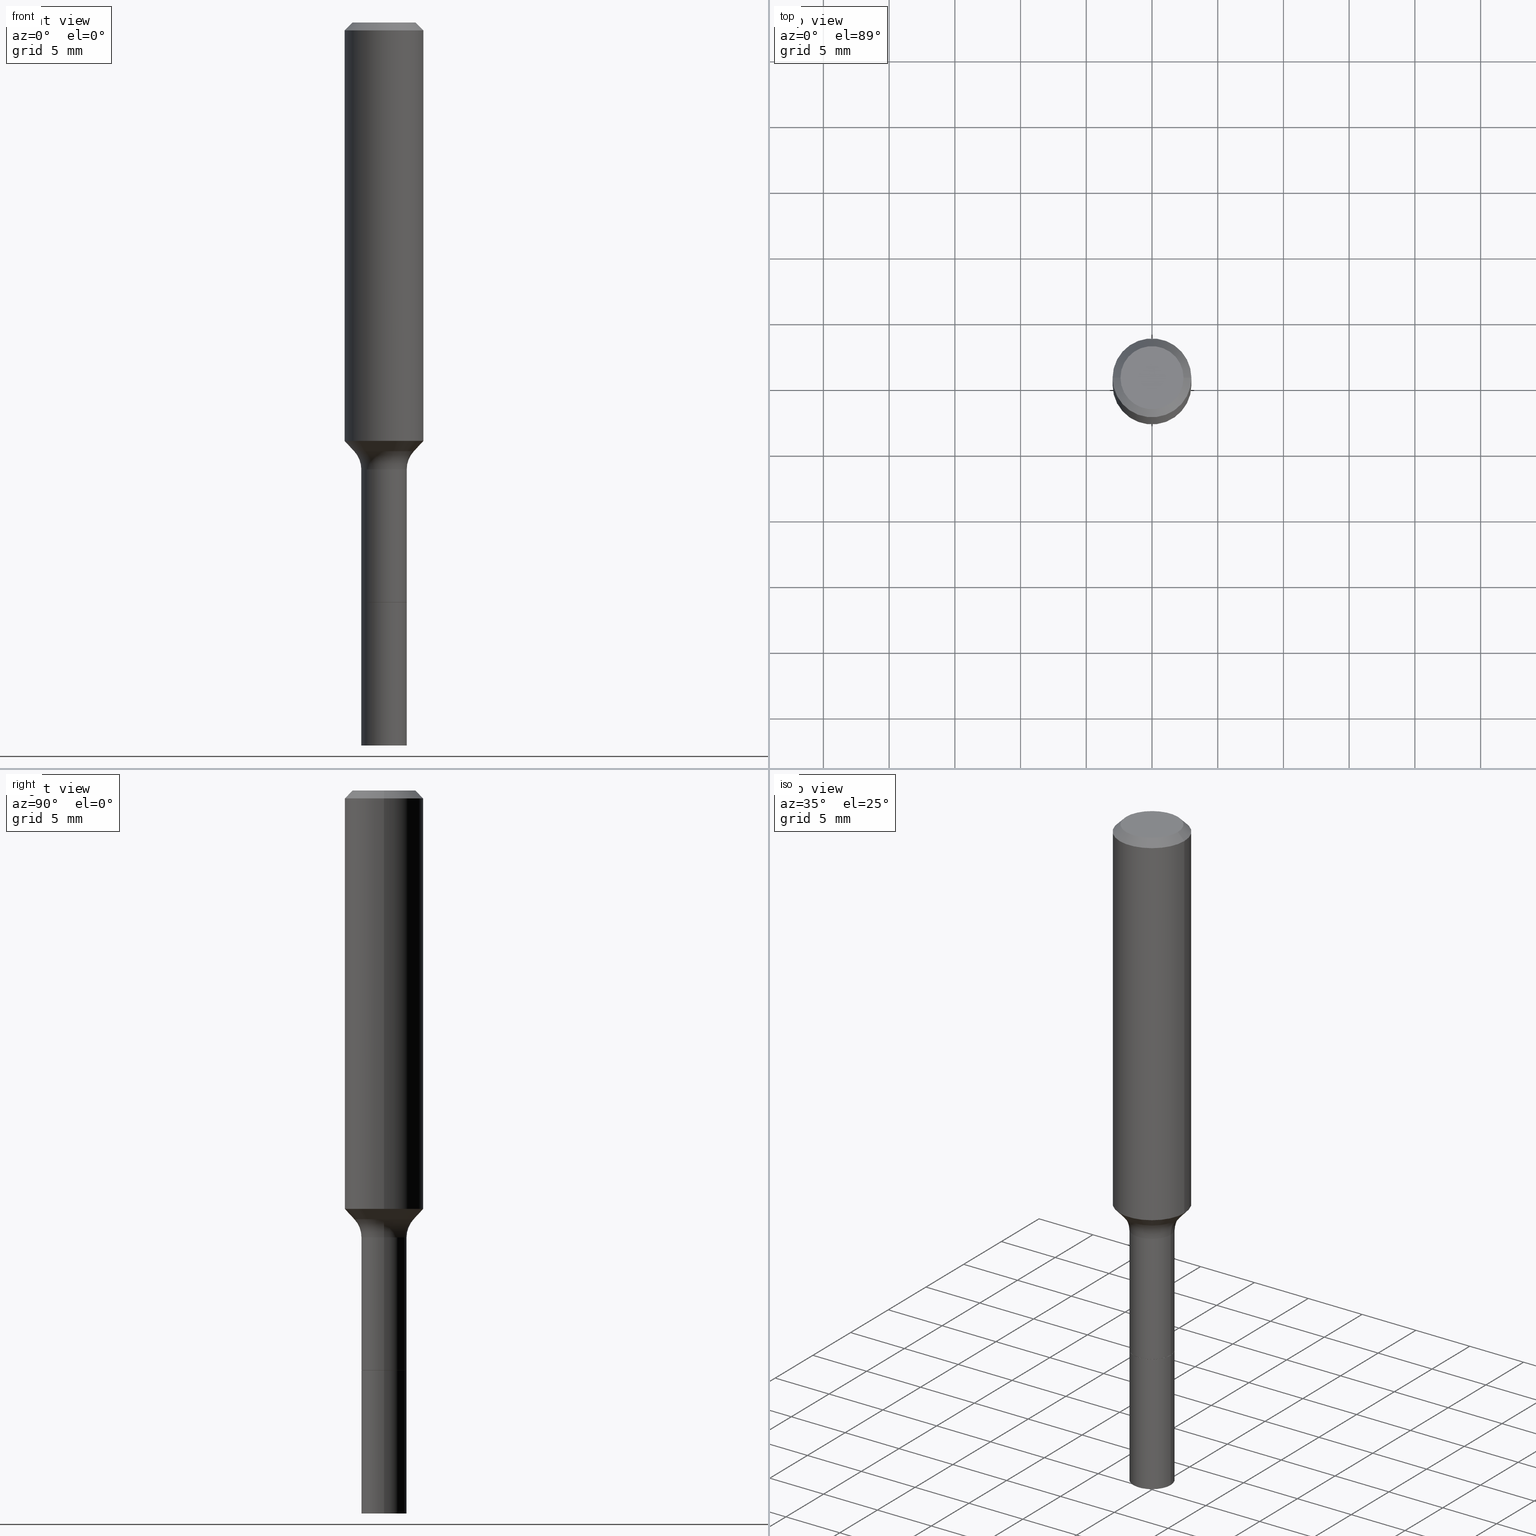
[diagram: canonical four-view strip — front | top / right | iso, engineering-drawing reading convention]
A machine part, canonical four-view strip (front | top / right | iso — engineering-drawing reading convention). The complete STEP part file that produces these views, byte-faithful:
ISO-10303-21;
HEADER;
FILE_DESCRIPTION (( 'STEP AP203' ),
    '1' );
FILE_NAME ('58801.STEP',
    '2025-04-01T15:24:49',
    ( '' ),
    ( '' ),
    'SwSTEP 2.0',
    'SolidWorks 2024',
    '' );
FILE_SCHEMA (( 'CONFIG_CONTROL_DESIGN' ));
ENDSEC;

DATA;
#1 = EDGE_LOOP ( 'NONE', ( #206, #467, #70, #57 ) ) ;
#2 = LINE ( 'NONE', #42, #425 ) ;
#3 = VERTEX_POINT ( 'NONE', #85 ) ;
#4 = CARTESIAN_POINT ( 'NONE',  ( -0.06750000000000000444, -5.580342622955058549E-15, -1.736399999999999721 ) ) ;
#5 = ADVANCED_FACE ( 'NONE', ( #245 ), #414, .T. ) ;
#6 = ORIENTED_EDGE ( 'NONE', *, *, #253, .F. ) ;
#7 = DIRECTION ( 'NONE',  ( 1.000000000000000000, -6.982962677686264344E-15, 0.000000000000000000 ) ) ;
#8 = VECTOR ( 'NONE', #184, 39.37007874015748143 ) ;
#9 = AXIS2_PLACEMENT_3D ( 'NONE', #417, #518, #215 ) ;
#10 = LINE ( 'NONE', #294, #454 ) ;
#11 =( LENGTH_UNIT ( ) NAMED_UNIT ( * ) SI_UNIT ( $, .METRE. ) );
#12 = EDGE_CURVE ( 'NONE', #436, #21, #127, .T. ) ;
#13 = CARTESIAN_POINT ( 'NONE',  ( 4.246312035059870225E-29, -6.062608196767237407E-15, -1.736399999999999721 ) ) ;
#14 = FACE_OUTER_BOUND ( 'NONE', #320, .T. ) ;
#15 = AXIS2_PLACEMENT_3D ( 'NONE', #194, #399, #513 ) ;
#16 = PERSON_AND_ORGANIZATION ( #258, #69 ) ;
#17 = EDGE_CURVE ( 'NONE', #87, #514, #10, .T. ) ;
#18 = CARTESIAN_POINT ( 'NONE',  ( 0.1180999999999999966, -9.071566814582237199E-16, -0.02362000000000014435 ) ) ;
#19 = AXIS2_PLACEMENT_3D ( 'NONE', #188, #342, #458 ) ;
#20 = AXIS2_PLACEMENT_3D ( 'NONE', #476, #372, #517 ) ;
#21 = VERTEX_POINT ( 'NONE', #48 ) ;
#22 = FACE_OUTER_BOUND ( 'NONE', #289, .T. ) ;
#23 = PERSON_AND_ORGANIZATION_ROLE ( 'design_supplier' ) ;
#24 = ADVANCED_FACE ( 'NONE', ( #377 ), #109, .T. ) ;
#25 = ORIENTED_EDGE ( 'NONE', *, *, #12, .T. ) ;
#26 = CARTESIAN_POINT ( 'NONE',  ( 0.06750000000000000444, -6.533958177511060726E-15, -1.736399999999999721 ) ) ;
#27 = CALENDAR_DATE ( 2025, 1, 4 ) ;
#28 = DIRECTION ( 'NONE',  ( 1.000000000000000000, -6.982962677686265922E-15, 0.000000000000000000 ) ) ;
#29 = AXIS2_PLACEMENT_3D ( 'NONE', #308, #463, #28 ) ;
#30 = CONICAL_SURFACE ( 'NONE', #307, 0.1180999999999999966, 0.7853981633974461696 ) ;
#31 = DIRECTION ( 'NONE',  ( 1.000000000000000000, -6.982962677686266711E-15, 4.876176775795936353E-29 ) ) ;
#32 = ORIENTED_EDGE ( 'NONE', *, *, #78, .F. ) ;
#33 = DIRECTION ( 'NONE',  ( 1.000000000000000000, -6.982962677686267499E-15, 0.000000000000000000 ) ) ;
#34 = CARTESIAN_POINT ( 'NONE',  ( 3.273015450198186344E-29, -4.672998623907665346E-15, -1.338399999999999812 ) ) ;
#35 = EDGE_LOOP ( 'NONE', ( #433, #112, #25, #115 ) ) ;
#36 = DIRECTION ( 'NONE',  ( 1.000000000000000000, -6.982962677686260400E-15, 0.000000000000000000 ) ) ;
#37 = DIRECTION ( 'NONE',  ( 2.438088387897960049E-29, -3.491481338843145188E-15, -1.000000000000000000 ) ) ;
#38 = CONICAL_SURFACE ( 'NONE', #79, 0.1180999999999999966, 0.7853981633974461696 ) ;
#39 = VERTEX_POINT ( 'NONE', #26 ) ;
#40 = AXIS2_PLACEMENT_3D ( 'NONE', #197, #47, #328 ) ;
#41 = CIRCLE ( 'NONE', #257, 0.06800000000000000488 ) ;
#42 = CARTESIAN_POINT ( 'NONE',  ( 0.06750000000000000444, -6.533958177511060726E-15, -1.736399999999999721 ) ) ;
#43 = ORIENTED_EDGE ( 'NONE', *, *, #226, .T. ) ;
#44 = ADVANCED_FACE ( 'NONE', ( #312 ), #385, .T. ) ;
#45 = CARTESIAN_POINT ( 'NONE',  ( 3.273015450198186344E-29, -4.672998623907665346E-15, -1.338399999999999812 ) ) ;
#46 = ORIENTED_EDGE ( 'NONE', *, *, #502, .F. ) ;
#47 = DIRECTION ( 'NONE',  ( 2.438088387897960049E-29, -3.491481338843145188E-15, -1.000000000000000000 ) ) ;
#48 = CARTESIAN_POINT ( 'NONE',  ( -0.1180999999999999966, -1.389778401389283023E-15, -0.02362000000000014435 ) ) ;
#49 = AXIS2_PLACEMENT_3D ( 'NONE', #191, #353, #506 ) ;
#50 = LOCAL_TIME ( 11, 24, 49.00000000000000000, #219 ) ;
#51 = EDGE_CURVE ( 'NONE', #397, #145, #349, .T. ) ;
#52 = LENGTH_MEASURE_WITH_UNIT ( LENGTH_MEASURE( 0.02539999999999999897 ), #11 );
#53 = AXIS2_PLACEMENT_3D ( 'NONE', #481, #369, #485 ) ;
#54 = EDGE_CURVE ( 'NONE', #3, #351, #176, .T. ) ;
#55 = APPLICATION_PROTOCOL_DEFINITION ( 'international standard', 'config_control_design', 1994, #358 ) ;
#56 = PRODUCT_DEFINITION_SHAPE ( 'NONE', 'NONE',  #281 ) ;
#57 = ORIENTED_EDGE ( 'NONE', *, *, #54, .F. ) ;
#58 = DIRECTION ( 'NONE',  ( 2.445468806185136597E-29, -3.491481338843145583E-15, -1.000000000000000000 ) ) ;
#59 = EDGE_CURVE ( 'NONE', #345, #404, #302, .T. ) ;
#60 = APPROVAL_ROLE ( '' ) ;
#61 = CARTESIAN_POINT ( 'NONE',  ( -0.06800000000000001876, -4.883761479685873253E-15, -1.735899999999999999 ) ) ;
#62 = APPROVAL_ROLE ( '' ) ;
#63 = EDGE_LOOP ( 'NONE', ( #391, #142, #162, #311 ) ) ;
#64 = DIRECTION ( 'NONE',  ( -2.445468806185136597E-29, 3.491481338843145583E-15, 1.000000000000000000 ) ) ;
#65 = DATE_AND_TIME ( #510, #416 ) ;
#66 = ORIENTED_EDGE ( 'NONE', *, *, #107, .F. ) ;
#67 = DIRECTION ( 'NONE',  ( -2.445468806185136597E-29, 3.491481338843145583E-15, 1.000000000000000000 ) ) ;
#68 = AXIS2_PLACEMENT_3D ( 'NONE', #487, #333, #248 ) ;
#69 = ORGANIZATION ( 'UNSPECIFIED', 'UNSPECIFIED', '' ) ;
#70 = ORIENTED_EDGE ( 'NONE', *, *, #208, .F. ) ;
#71 = CARTESIAN_POINT ( 'NONE',  ( -0.08949170387046634367, -3.846627059165739052E-15, -1.283840131195000067 ) ) ;
#72 = CC_DESIGN_PERSON_AND_ORGANIZATION_ASSIGNMENT ( #261, #23, ( #177 ) ) ;
#73 = ORIENTED_EDGE ( 'NONE', *, *, #253, .T. ) ;
#74 = CARTESIAN_POINT ( 'NONE',  ( 0.000000000000000000, 0.000000000000000000, 0.000000000000000000 ) ) ;
#75 = CARTESIAN_POINT ( 'NONE',  ( 4.246312035059870225E-29, -6.062608196767237407E-15, -1.736399999999999721 ) ) ;
#76 = VERTEX_POINT ( 'NONE', #456 ) ;
#77 = CARTESIAN_POINT ( 'NONE',  ( 5.295418152913294345E-29, -7.560453691130947423E-15, -2.165399999999999991 ) ) ;
#78 = EDGE_CURVE ( 'NONE', #179, #21, #503, .T. ) ;
#79 = AXIS2_PLACEMENT_3D ( 'NONE', #466, #58, #387 ) ;
#80 = ORIENTED_EDGE ( 'NONE', *, *, #438, .F. ) ;
#81 = CIRCLE ( 'NONE', #173, 0.08949170387046632980 ) ;
#82 = CC_DESIGN_DATE_AND_TIME_ASSIGNMENT ( #65, #277, ( #281 ) ) ;
#83 = LOCAL_TIME ( 11, 24, 49.00000000000000000, #185 ) ;
#84 = LINE ( 'NONE', #244, #240 ) ;
#85 = CARTESIAN_POINT ( 'NONE',  ( 0.06800000000000014366, -8.035295153213613748E-15, -2.165399999999999991 ) ) ;
#86 = CARTESIAN_POINT ( 'NONE',  ( -0.06799999999999994937, -4.883761479685873253E-15, -1.338399999999999812 ) ) ;
#87 = VERTEX_POINT ( 'NONE', #149 ) ;
#88 = DIRECTION ( 'NONE',  ( -2.445468806185136597E-29, 3.491481338843145583E-15, 1.000000000000000000 ) ) ;
#89 = DIRECTION ( 'NONE',  ( -1.000000000000000000, 6.982962677686265922E-15, -4.876176775795935793E-29 ) ) ;
#90 =( GEOMETRIC_REPRESENTATION_CONTEXT ( 3 ) GLOBAL_UNCERTAINTY_ASSIGNED_CONTEXT ( ( #477 ) ) GLOBAL_UNIT_ASSIGNED_CONTEXT ( ( #453, #178, #322 ) ) REPRESENTATION_CONTEXT ( 'NONE', 'WORKASPACE' ) );
#91 = CC_DESIGN_APPROVAL ( #180, ( #309 ) ) ;
#92 = DIRECTION ( 'NONE',  ( 1.000000000000000000, -6.982962677686269077E-15, 4.883557194083113462E-29 ) ) ;
#93 = EDGE_CURVE ( 'NONE', #164, #348, #273, .T. ) ;
#94 = AXIS2_PLACEMENT_3D ( 'NONE', #402, #88, #92 ) ;
#95 = EDGE_LOOP ( 'NONE', ( #408, #220, #238, #443 ) ) ;
#96 = ADVANCED_FACE ( 'NONE', ( #260 ), #38, .T. ) ;
#97 = DIRECTION ( 'NONE',  ( 1.000000000000000000, -6.982962677686268288E-15, 0.000000000000000000 ) ) ;
#98 = APPROVAL_STATUS ( 'not_yet_approved' ) ;
#99 = VERTEX_POINT ( 'NONE', #18 ) ;
#100 = CARTESIAN_POINT ( 'NONE',  ( 0.1180999999999999966, -8.926936027602933910E-16, -0.02362000000000014435 ) ) ;
#101 = AXIS2_PLACEMENT_3D ( 'NONE', #236, #123, #36 ) ;
#102 = PERSON_AND_ORGANIZATION ( #258, #69 ) ;
#103 = CARTESIAN_POINT ( 'NONE',  ( -0.1181000000000001354, -3.536238984487769574E-15, -1.253161489578567878 ) ) ;
#104 = CALENDAR_DATE ( 2025, 1, 4 ) ;
#105 = CARTESIAN_POINT ( 'NONE',  ( 4.246312035059870225E-29, -6.062608196767237407E-15, -1.736399999999999721 ) ) ;
#106 = APPROVAL_DATE_TIME ( #141, #326 ) ;
#107 = EDGE_CURVE ( 'NONE', #404, #179, #166, .T. ) ;
#108 = CARTESIAN_POINT ( 'NONE',  ( 0.06800000000000007427, -6.537449658849904522E-15, -1.736399999999999721 ) ) ;
#109 = CONICAL_SURFACE ( 'NONE', #306, 0.06750000000000000444, 0.7853981633975507526 ) ;
#110 = SECURITY_CLASSIFICATION_LEVEL ( 'unclassified' ) ;
#111 = CC_DESIGN_APPROVAL ( #326, ( #281 ) ) ;
#112 = ORIENTED_EDGE ( 'NONE', *, *, #195, .F. ) ;
#113 = DIRECTION ( 'NONE',  ( 1.000000000000000000, -6.982962677686267499E-15, 4.876176775795935793E-29 ) ) ;
#114 = DIRECTION ( 'NONE',  ( 1.000000000000000000, -6.982962677686267499E-15, 0.000000000000000000 ) ) ;
#115 = ORIENTED_EDGE ( 'NONE', *, *, #502, .T. ) ;
#116 = DIRECTION ( 'NONE',  ( -2.445468806185136597E-29, 3.491481338843145583E-15, 1.000000000000000000 ) ) ;
#117 = ADVANCED_FACE ( 'NONE', ( #22 ), #498, .T. ) ;
#118 = ORIENTED_EDGE ( 'NONE', *, *, #464, .F. ) ;
#119 = FACE_OUTER_BOUND ( 'NONE', #35, .T. ) ;
#120 = VECTOR ( 'NONE', #395, 39.37007874015748143 ) ;
#121 = ORIENTED_EDGE ( 'NONE', *, *, #187, .F. ) ;
#122 = CIRCLE ( 'NONE', #53, 0.06800000000000000488 ) ;
#123 = DIRECTION ( 'NONE',  ( -2.445468806185136597E-29, 3.491481338843145583E-15, 1.000000000000000000 ) ) ;
#124 = EDGE_LOOP ( 'NONE', ( #167, #511 ) ) ;
#125 = CARTESIAN_POINT ( 'NONE',  ( 4.246312035059870225E-29, -6.062608196767237407E-15, -1.736399999999999721 ) ) ;
#126 = DIRECTION ( 'NONE',  ( -1.000000000000000000, 6.982962677686265922E-15, -4.876176775795935793E-29 ) ) ;
#127 = LINE ( 'NONE', #210, #419 ) ;
#128 = CARTESIAN_POINT ( 'NONE',  ( 4.246312035059870225E-29, -6.062608196767237407E-15, -1.736399999999999721 ) ) ;
#129 = CC_DESIGN_PERSON_AND_ORGANIZATION_ASSIGNMENT ( #182, #469, ( #177 ) ) ;
#130 = DIRECTION ( 'NONE',  ( 1.000000000000000000, -6.982962677686268288E-15, 0.000000000000000000 ) ) ;
#131 = LOCAL_TIME ( 11, 24, 49.00000000000000000, #154 ) ;
#132 = DIRECTION ( 'NONE',  ( -2.445468806185136597E-29, 3.491481338843145583E-15, 1.000000000000000000 ) ) ;
#133 = EDGE_CURVE ( 'NONE', #164, #87, #274, .T. ) ;
#134 = AXIS2_PLACEMENT_3D ( 'NONE', #429, #388, #31 ) ;
#135 = CIRCLE ( 'NONE', #381, 0.1180999999999999966 ) ;
#136 = ADVANCED_FACE ( 'NONE', ( #143 ), #200, .T. ) ;
#137 = PRODUCT ( '58801', '58801', '', ( #396 ) ) ;
#138 = ORIENTED_EDGE ( 'NONE', *, *, #325, .T. ) ;
#139 = CARTESIAN_POINT ( 'NONE',  ( 4.245089300656778545E-29, -6.060862456097816693E-15, -1.735899999999999999 ) ) ;
#140 = APPROVAL ( #98, 'UNSPECIFIED' ) ;
#141 = DATE_AND_TIME ( #310, #50 ) ;
#142 = ORIENTED_EDGE ( 'NONE', *, *, #471, .T. ) ;
#143 = FACE_OUTER_BOUND ( 'NONE', #373, .T. ) ;
#144 = PERSON_AND_ORGANIZATION_ROLE ( 'classification_officer' ) ;
#145 = VERTEX_POINT ( 'NONE', #508 ) ;
#146 = DIRECTION ( 'NONE',  ( -2.445468806185136877E-29, 3.491481338843145188E-15, 1.000000000000000000 ) ) ;
#147 = CIRCLE ( 'NONE', #495, 0.06750000000000000444 ) ;
#148 = TOROIDAL_SURFACE ( 'NONE', #94, 0.1479999999999999372, 0.07999999999999993228 ) ;
#149 = CARTESIAN_POINT ( 'NONE',  ( 0.06800000000000000488, -6.535703918180482229E-15, -1.735899999999999999 ) ) ;
#150 = EDGE_CURVE ( 'NONE', #76, #99, #304, .T. ) ;
#151 = PERSON_AND_ORGANIZATION ( #258, #69 ) ;
#152 = EDGE_LOOP ( 'NONE', ( #43, #186, #470, #423 ) ) ;
#153 = CARTESIAN_POINT ( 'NONE',  ( 4.246312035059870225E-29, -6.062608196767237407E-15, -1.736399999999999721 ) ) ;
#154 = COORDINATED_UNIVERSAL_TIME_OFFSET ( 5, 0, .BEHIND. ) ;
#155 = ORIENTED_EDGE ( 'NONE', *, *, #107, .T. ) ;
#156 = FACE_OUTER_BOUND ( 'NONE', #484, .T. ) ;
#157 = DIRECTION ( 'NONE',  ( 0.000000000000000000, 0.000000000000000000, 1.000000000000000000 ) ) ;
#158 = ORIENTED_EDGE ( 'NONE', *, *, #382, .T. ) ;
#159 = EDGE_CURVE ( 'NONE', #404, #99, #390, .T. ) ;
#160 = DIRECTION ( 'NONE',  ( -2.445468806185136597E-29, 3.491481338843145583E-15, 1.000000000000000000 ) ) ;
#161 = CARTESIAN_POINT ( 'NONE',  ( -0.09447999999999998066, 7.009847083995354710E-16, -3.085620075132147757E-17 ) ) ;
#162 = ORIENTED_EDGE ( 'NONE', *, *, #246, .T. ) ;
#163 = FACE_OUTER_BOUND ( 'NONE', #95, .T. ) ;
#164 = VERTEX_POINT ( 'NONE', #61 ) ;
#165 = DIRECTION ( 'NONE',  ( -2.445468806185136597E-29, 3.491481338843145583E-15, 1.000000000000000000 ) ) ;
#166 = CIRCLE ( 'NONE', #19, 0.1181000000000001493 ) ;
#167 = ORIENTED_EDGE ( 'NONE', *, *, #226, .F. ) ;
#168 = AXIS2_PLACEMENT_3D ( 'NONE', #412, #321, #207 ) ;
#169 = DIRECTION ( 'NONE',  ( 1.000000000000000000, -6.982962677686260400E-15, 0.000000000000000000 ) ) ;
#170 = DIRECTION ( 'NONE',  ( -2.445468806185136877E-29, 3.491481338843145188E-15, 1.000000000000000000 ) ) ;
#171 = DIRECTION ( 'NONE',  ( -2.445468806185136597E-29, 3.491481338843145583E-15, 1.000000000000000000 ) ) ;
#172 = EDGE_CURVE ( 'NONE', #348, #514, #263, .T. ) ;
#173 = AXIS2_PLACEMENT_3D ( 'NONE', #361, #451, #234 ) ;
#174 = DIRECTION ( 'NONE',  ( 1.000000000000000000, -6.982962677686265922E-15, 0.000000000000000000 ) ) ;
#175 = CLOSED_SHELL ( 'NONE', ( #403, #339, #344, #384 ) ) ;
#176 = LINE ( 'NONE', #108, #250 ) ;
#177 = PRODUCT_DEFINITION_FORMATION_WITH_SPECIFIED_SOURCE ( 'ANY', '', #137, .NOT_KNOWN. ) ;
#178 =( NAMED_UNIT ( * ) PLANE_ANGLE_UNIT ( ) SI_UNIT ( $, .RADIAN. ) );
#179 = VERTEX_POINT ( 'NONE', #103 ) ;
#180 = APPROVAL ( #427, 'UNSPECIFIED' ) ;
#181 = CARTESIAN_POINT ( 'NONE',  ( -0.1181000000000000660, 8.391509709326787887E-16, -5.809262341591047287E-30 ) ) ;
#182 = PERSON_AND_ORGANIZATION ( #258, #69 ) ;
#183 = ORIENTED_EDGE ( 'NONE', *, *, #208, .T. ) ;
#184 = DIRECTION ( 'NONE',  ( 0.6819983600625003639, -2.208861293262494341E-15, 0.7313537016191687945 ) ) ;
#185 = COORDINATED_UNIVERSAL_TIME_OFFSET ( 5, 0, .BEHIND. ) ;
#186 = ORIENTED_EDGE ( 'NONE', *, *, #214, .T. ) ;
#187 = EDGE_CURVE ( 'NONE', #345, #514, #375, .T. ) ;
#188 = CARTESIAN_POINT ( 'NONE',  ( 3.064567331876887429E-29, -4.375389955420448954E-15, -1.253161489578567878 ) ) ;
#189 = ADVANCED_BREP_SHAPE_REPRESENTATION ( '58801', ( #224, #413, #386 ), #90 ) ;
#190 = CIRCLE ( 'NONE', #101, 0.06800000000000014366 ) ;
#191 = CARTESIAN_POINT ( 'NONE',  ( 0.1479999999999999372, -5.706477100205231747E-15, -1.338399999999999812 ) ) ;
#192 = ORIENTED_EDGE ( 'NONE', *, *, #51, .F. ) ;
#193 = DIRECTION ( 'NONE',  ( 1.000000000000000000, -6.982962677686269077E-15, 4.883557194083113462E-29 ) ) ;
#194 = CARTESIAN_POINT ( 'NONE',  ( 3.139590992966006013E-29, -4.482503860125278864E-15, -1.283840131195000067 ) ) ;
#195 = EDGE_CURVE ( 'NONE', #436, #76, #434, .T. ) ;
#196 = EDGE_LOOP ( 'NONE', ( #80, #138, #367, #121 ) ) ;
#197 = CARTESIAN_POINT ( 'NONE',  ( 5.295418152913294345E-29, -7.560453691130947423E-15, -2.165399999999999991 ) ) ;
#198 = PLANE ( 'NONE',  #455 ) ;
#199 = VECTOR ( 'NONE', #146, 39.37007874015748143 ) ;
#200 = CONICAL_SURFACE ( 'NONE', #492, 0.08949170387046632980, 0.7504915783575641930 ) ;
#201 = AXIS2_PLACEMENT_3D ( 'NONE', #74, #473, #113 ) ;
#202 = ORIENTED_EDGE ( 'NONE', *, *, #159, .F. ) ;
#203 = DIRECTION ( 'NONE',  ( 1.000000000000000000, -6.982962677686266711E-15, 0.000000000000000000 ) ) ;
#204 = ORIENTED_EDGE ( 'NONE', *, *, #332, .F. ) ;
#205 = DIRECTION ( 'NONE',  ( -2.445468806185136597E-29, 3.491481338843145583E-15, 1.000000000000000000 ) ) ;
#206 = ORIENTED_EDGE ( 'NONE', *, *, #332, .T. ) ;
#207 = DIRECTION ( 'NONE',  ( 1.000000000000000000, -6.982962677686267499E-15, 4.875432709231658792E-29 ) ) ;
#208 = EDGE_CURVE ( 'NONE', #351, #145, #459, .T. ) ;
#209 = DATE_AND_TIME ( #104, #83 ) ;
#210 = CARTESIAN_POINT ( 'NONE',  ( -0.1180999999999999966, 7.422191030112725094E-16, -0.02362000000000014435 ) ) ;
#211 = DIRECTION ( 'NONE',  ( 2.438088387897960049E-29, -3.491481338843145188E-15, -1.000000000000000000 ) ) ;
#212 = CARTESIAN_POINT ( 'NONE',  ( 0.000000000000000000, 0.000000000000000000, 0.000000000000000000 ) ) ;
#213 = CARTESIAN_POINT ( 'NONE',  ( 0.1181000000000001354, -5.200077847655198006E-15, -1.253161489578567878 ) ) ;
#214 = EDGE_CURVE ( 'NONE', #330, #164, #84, .T. ) ;
#215 = DIRECTION ( 'NONE',  ( 1.000000000000000000, -6.982962677686265922E-15, 4.876176775795935793E-29 ) ) ;
#216 = CIRCLE ( 'NONE', #337, 0.1181000000000001493 ) ;
#217 = DIMENSIONAL_EXPONENTS ( 1.000000000000000000, 0.000000000000000000, 0.000000000000000000, 0.000000000000000000, 0.000000000000000000, 0.000000000000000000, 0.000000000000000000 ) ;
#218 = DIRECTION ( 'NONE',  ( -2.445468806185136597E-29, 3.491481338843145583E-15, 1.000000000000000000 ) ) ;
#219 = COORDINATED_UNIVERSAL_TIME_OFFSET ( 5, 0, .BEHIND. ) ;
#220 = ORIENTED_EDGE ( 'NONE', *, *, #287, .F. ) ;
#221 = DIRECTION ( 'NONE',  ( -2.445468806185136877E-29, 3.491481338843145188E-15, 1.000000000000000000 ) ) ;
#222 = APPROVAL_PERSON_ORGANIZATION ( #313, #140, #60 ) ;
#223 = DIRECTION ( 'NONE',  ( -2.445468806185136877E-29, 3.491481338843145188E-15, 1.000000000000000000 ) ) ;
#224 = MANIFOLD_SOLID_BREP ( 'Body-Move/Copy2[1]', #175 ) ;
#225 = COORDINATED_UNIVERSAL_TIME_OFFSET ( 5, 0, .BEHIND. ) ;
#226 = EDGE_CURVE ( 'NONE', #39, #330, #147, .T. ) ;
#227 = CARTESIAN_POINT ( 'NONE',  ( -0.06800000000000007427, -5.579439136450368852E-15, -1.736399999999999721 ) ) ;
#228 = VERTEX_POINT ( 'NONE', #71 ) ;
#229 = DIRECTION ( 'NONE',  ( 1.000000000000000000, -6.982962677686267499E-15, 4.875432709231658792E-29 ) ) ;
#230 = TOROIDAL_SURFACE ( 'NONE', #504, 0.1479999999999999372, 0.07999999999999993228 ) ;
#231 = APPROVAL_STATUS ( 'not_yet_approved' ) ;
#232 = CYLINDRICAL_SURFACE ( 'NONE', #201, 0.06799999999999997713 ) ;
#233 = EDGE_CURVE ( 'NONE', #87, #164, #122, .T. ) ;
#234 = DIRECTION ( 'NONE',  ( 1.000000000000000000, -6.982962677686261977E-15, 0.000000000000000000 ) ) ;
#235 = ORIENTED_EDGE ( 'NONE', *, *, #59, .T. ) ;
#236 = CARTESIAN_POINT ( 'NONE',  ( 5.295418152913294345E-29, -7.560453691130947423E-15, -2.165399999999999991 ) ) ;
#237 = FACE_OUTER_BOUND ( 'NONE', #196, .T. ) ;
#238 = ORIENTED_EDGE ( 'NONE', *, *, #187, .T. ) ;
#239 = DIRECTION ( 'NONE',  ( -2.445468806185136597E-29, 3.491481338843145583E-15, 1.000000000000000000 ) ) ;
#240 = VECTOR ( 'NONE', #324, 39.37007874015748143 ) ;
#241 = CIRCLE ( 'NONE', #366, 0.06799999999999994937 ) ;
#242 = CC_DESIGN_SECURITY_CLASSIFICATION ( #309, ( #177 ) ) ;
#243 = ORIENTED_EDGE ( 'NONE', *, *, #301, .T. ) ;
#244 = CARTESIAN_POINT ( 'NONE',  ( -0.06750000000000000444, -5.582991850129169750E-15, -1.736399999999999721 ) ) ;
#245 = FACE_OUTER_BOUND ( 'NONE', #362, .T. ) ;
#246 = EDGE_CURVE ( 'NONE', #39, #87, #2, .T. ) ;
#247 = CARTESIAN_POINT ( 'NONE',  ( 0.06800000000000000488, -6.537449658849903733E-15, -1.736399999999999721 ) ) ;
#248 = DIRECTION ( 'NONE',  ( 1.000000000000000000, -6.982962677686267499E-15, 4.876176775795935793E-29 ) ) ;
#249 = CARTESIAN_POINT ( 'NONE',  ( 4.246312035059870225E-29, -6.062608196767237407E-15, -1.736399999999999721 ) ) ;
#250 = VECTOR ( 'NONE', #424, 39.37007874015748143 ) ;
#251 = AXIS2_PLACEMENT_3D ( 'NONE', #398, #165, #401 ) ;
#252 = CYLINDRICAL_SURFACE ( 'NONE', #516, 0.1181000000000000660 ) ;
#253 = EDGE_CURVE ( 'NONE', #99, #21, #496, .T. ) ;
#254 = PLANE ( 'NONE',  #472 ) ;
#255 = APPLICATION_CONTEXT ( 'configuration controlled 3d designs of mechanical parts and assemblies' ) ;
#256 = VECTOR ( 'NONE', #264, 39.37007874015748143 ) ;
#257 = AXIS2_PLACEMENT_3D ( 'NONE', #13, #171, #494 ) ;
#258 = PERSON ( 'UNSPECIFIED', 'UNSPECIFIED', 'UNSPECIFIED', ('UNSPECIFIED'), ('UNSPECIFIED'), ('UNSPECIFIED') ) ;
#259 = PERSON_AND_ORGANIZATION ( #258, #69 ) ;
#260 = FACE_OUTER_BOUND ( 'NONE', #505, .T. ) ;
#261 = PERSON_AND_ORGANIZATION ( #258, #69 ) ;
#262 = ORIENTED_EDGE ( 'NONE', *, *, #150, .T. ) ;
#263 = CIRCLE ( 'NONE', #29, 0.06799999999999994937 ) ;
#264 = DIRECTION ( 'NONE',  ( 0.7071067811865460184, -7.319954787623251312E-15, -0.7071067811865490160 ) ) ;
#265 = AXIS2_PLACEMENT_3D ( 'NONE', #284, #239, #203 ) ;
#266 = LOCAL_TIME ( 11, 24, 49.00000000000000000, #343 ) ;
#267 = ADVANCED_FACE ( 'NONE', ( #442 ), #232, .T. ) ;
#268 = EDGE_LOOP ( 'NONE', ( #480, #291, #66, #475 ) ) ;
#269 = CARTESIAN_POINT ( 'NONE',  ( 3.139590992966006013E-29, -4.482503860125278864E-15, -1.283840131195000067 ) ) ;
#270 = CALENDAR_DATE ( 2025, 1, 4 ) ;
#271 = DIRECTION ( 'NONE',  ( 1.000000000000000000, -6.982962677686261977E-15, 0.000000000000000000 ) ) ;
#272 = EDGE_LOOP ( 'NONE', ( #192, #243, #457, #283 ) ) ;
#273 = LINE ( 'NONE', #315, #364 ) ;
#274 = CIRCLE ( 'NONE', #491, 0.06800000000000000488 ) ;
#275 = APPROVAL_PERSON_ORGANIZATION ( #259, #326, #355 ) ;
#276 = APPROVAL_PERSON_ORGANIZATION ( #102, #180, #62 ) ;
#277 = DATE_TIME_ROLE ( 'creation_date' ) ;
#278 = ORIENTED_EDGE ( 'NONE', *, *, #301, .F. ) ;
#279 = CARTESIAN_POINT ( 'NONE',  ( 5.776197320209328408E-31, -8.246878922347560526E-17, -0.02362000000000014435 ) ) ;
#280 = CARTESIAN_POINT ( 'NONE',  ( 0.000000000000000000, 0.000000000000000000, 0.000000000000000000 ) ) ;
#281 = PRODUCT_DEFINITION ( 'UNKNOWN', '', #177, #350 ) ;
#282 = SHAPE_DEFINITION_REPRESENTATION ( #56, #189 ) ;
#283 = ORIENTED_EDGE ( 'NONE', *, *, #452, .F. ) ;
#284 = CARTESIAN_POINT ( 'NONE',  ( 5.776197320209328408E-31, -8.246878922347560526E-17, -0.02362000000000014435 ) ) ;
#285 = EDGE_LOOP ( 'NONE', ( #183, #446 ) ) ;
#286 = DIRECTION ( 'NONE',  ( -2.445468806185136597E-29, 3.491481338843145583E-15, 1.000000000000000000 ) ) ;
#287 = EDGE_CURVE ( 'NONE', #345, #228, #376, .T. ) ;
#288 = APPLICATION_PROTOCOL_DEFINITION ( 'international standard', 'config_control_design', 1994, #255 ) ;
#289 = EDGE_LOOP ( 'NONE', ( #155, #441, #6, #202 ) ) ;
#290 = CARTESIAN_POINT ( 'NONE',  ( 4.246312035059870225E-29, -6.062608196767237407E-15, -1.736399999999999721 ) ) ;
#291 = ORIENTED_EDGE ( 'NONE', *, *, #418, .T. ) ;
#292 = DIRECTION ( 'NONE',  ( 0.7071067811866199593, -2.468850131083015945E-15, 0.7071067811864750752 ) ) ;
#293 = FACE_OUTER_BOUND ( 'NONE', #1, .T. ) ;
#294 = CARTESIAN_POINT ( 'NONE',  ( 0.06799999999999997713, -4.748414620826660298E-16, 3.315800207541235302E-30 ) ) ;
#295 = ADVANCED_FACE ( 'NONE', ( #119 ), #30, .T. ) ;
#296 = CC_DESIGN_PERSON_AND_ORGANIZATION_ASSIGNMENT ( #151, #432, ( #281 ) ) ;
#297 = CIRCLE ( 'NONE', #461, 0.06750000000000000444 ) ;
#298 = DIRECTION ( 'NONE',  ( -0.6819983600625003639, 7.399397606724294465E-15, 0.7313537016191687945 ) ) ;
#299 = FACE_OUTER_BOUND ( 'NONE', #285, .T. ) ;
#300 = CARTESIAN_POINT ( 'NONE',  ( -0.08949170387046632980, -3.846627059165739841E-15, -1.283840131195000067 ) ) ;
#301 = EDGE_CURVE ( 'NONE', #397, #3, #394, .T. ) ;
#302 = LINE ( 'NONE', #383, #8 ) ;
#303 = ADVANCED_FACE ( 'NONE', ( #163 ), #230, .F. ) ;
#304 = LINE ( 'NONE', #100, #256 ) ;
#305 = DATE_AND_TIME ( #270, #266 ) ;
#306 = AXIS2_PLACEMENT_3D ( 'NONE', #153, #218, #97 ) ;
#307 = AXIS2_PLACEMENT_3D ( 'NONE', #279, #409, #437 ) ;
#308 = CARTESIAN_POINT ( 'NONE',  ( 3.273015450198186344E-29, -4.672998623907665346E-15, -1.338399999999999812 ) ) ;
#309 = SECURITY_CLASSIFICATION ( '', '', #110 ) ;
#310 = CALENDAR_DATE ( 2025, 1, 4 ) ;
#311 = ORIENTED_EDGE ( 'NONE', *, *, #133, .F. ) ;
#312 = FACE_OUTER_BOUND ( 'NONE', #152, .T. ) ;
#313 = PERSON_AND_ORGANIZATION ( #258, #69 ) ;
#314 = ORIENTED_EDGE ( 'NONE', *, *, #368, .F. ) ;
#315 = CARTESIAN_POINT ( 'NONE',  ( -0.06799999999999997713, 4.831690603168679639E-16, -3.344875861373334654E-30 ) ) ;
#316 = ORIENTED_EDGE ( 'NONE', *, *, #233, .T. ) ;
#317 = FACE_OUTER_BOUND ( 'NONE', #272, .T. ) ;
#318 = CARTESIAN_POINT ( 'NONE',  ( 5.776197320209328408E-31, -8.246878922347560526E-17, -0.02362000000000014435 ) ) ;
#319 = AXIS2_PLACEMENT_3D ( 'NONE', #290, #160, #33 ) ;
#320 = EDGE_LOOP ( 'NONE', ( #400, #341 ) ) ;
#321 = DIRECTION ( 'NONE',  ( -2.445468806185136597E-29, 3.491481338843145583E-15, 1.000000000000000000 ) ) ;
#322 =( NAMED_UNIT ( * ) SI_UNIT ( $, .STERADIAN. ) SOLID_ANGLE_UNIT ( ) );
#323 = ORIENTED_EDGE ( 'NONE', *, *, #418, .F. ) ;
#324 = DIRECTION ( 'NONE',  ( -0.7071067811866199593, 7.493145998870616062E-15, 0.7071067811864750752 ) ) ;
#325 = EDGE_CURVE ( 'NONE', #228, #348, #420, .T. ) ;
#326 = APPROVAL ( #231, 'UNSPECIFIED' ) ;
#327 = EDGE_LOOP ( 'NONE', ( #501, #371, #462, #444 ) ) ;
#328 = DIRECTION ( 'NONE',  ( -1.000000000000000000, 6.982962677686265922E-15, -4.876176775795935793E-29 ) ) ;
#329 = AXIS2_PLACEMENT_3D ( 'NONE', #431, #67, #229 ) ;
#330 = VERTEX_POINT ( 'NONE', #4 ) ;
#331 = DIRECTION ( 'NONE',  ( 1.000000000000000000, -6.982962677686268288E-15, 0.000000000000000000 ) ) ;
#332 = EDGE_CURVE ( 'NONE', #3, #397, #190, .T. ) ;
#333 = DIRECTION ( 'NONE',  ( -2.445468806185136597E-29, 3.491481338843145583E-15, 1.000000000000000000 ) ) ;
#334 = LINE ( 'NONE', #300, #407 ) ;
#335 = DIRECTION ( 'NONE',  ( -2.445468806185136597E-29, 3.491481338843145583E-15, 1.000000000000000000 ) ) ;
#336 = AXIS2_PLACEMENT_3D ( 'NONE', #357, #479, #169 ) ;
#337 = AXIS2_PLACEMENT_3D ( 'NONE', #374, #512, #7 ) ;
#338 = CYLINDRICAL_SURFACE ( 'NONE', #493, 0.06800000000000007427 ) ;
#339 = ADVANCED_FACE ( 'NONE', ( #156 ), #360, .T. ) ;
#340 = CONICAL_SURFACE ( 'NONE', #15, 0.08949170387046632980, 0.7504915783575641930 ) ;
#341 = ORIENTED_EDGE ( 'NONE', *, *, #368, .T. ) ;
#342 = DIRECTION ( 'NONE',  ( -2.445468806185136597E-29, 3.491481338843145583E-15, 1.000000000000000000 ) ) ;
#343 = COORDINATED_UNIVERSAL_TIME_OFFSET ( 5, 0, .BEHIND. ) ;
#344 = ADVANCED_FACE ( 'NONE', ( #317 ), #363, .T. ) ;
#345 = VERTEX_POINT ( 'NONE', #445 ) ;
#346 = DIRECTION ( 'NONE',  ( -2.445468806185136597E-29, 3.491481338843145583E-15, 1.000000000000000000 ) ) ;
#347 = CC_DESIGN_DATE_AND_TIME_ASSIGNMENT ( #305, #460, ( #309 ) ) ;
#348 = VERTEX_POINT ( 'NONE', #86 ) ;
#349 = LINE ( 'NONE', #227, #120 ) ;
#350 = DESIGN_CONTEXT ( 'detailed design', #358, 'design' ) ;
#351 = VERTEX_POINT ( 'NONE', #247 ) ;
#352 = AXIS2_PLACEMENT_3D ( 'NONE', #77, #286, #405 ) ;
#353 = DIRECTION ( 'NONE',  ( -6.982962677686266711E-15, -1.000000000000000000, 3.491481338843145583E-15 ) ) ;
#354 = CC_DESIGN_APPROVAL ( #140, ( #177 ) ) ;
#355 = APPROVAL_ROLE ( '' ) ;
#356 = ORIENTED_EDGE ( 'NONE', *, *, #17, .F. ) ;
#357 = CARTESIAN_POINT ( 'NONE',  ( 4.246312035059870225E-29, -6.062608196767237407E-15, -1.736399999999999721 ) ) ;
#358 = APPLICATION_CONTEXT ( 'configuration controlled 3d designs of mechanical parts and assemblies' ) ;
#359 = EDGE_LOOP ( 'NONE', ( #32, #158, #428, #46 ) ) ;
#360 = PLANE ( 'NONE',  #40 ) ;
#361 = CARTESIAN_POINT ( 'NONE',  ( 3.139590992966006013E-29, -4.482503860125278864E-15, -1.283840131195000067 ) ) ;
#362 = EDGE_LOOP ( 'NONE', ( #316, #478, #118, #356 ) ) ;
#363 = CYLINDRICAL_SURFACE ( 'NONE', #319, 0.06800000000000007427 ) ;
#364 = VECTOR ( 'NONE', #221, 39.37007874015748143 ) ;
#365 = PLANE ( 'NONE',  #9 ) ;
#366 = AXIS2_PLACEMENT_3D ( 'NONE', #34, #488, #174 ) ;
#367 = ORIENTED_EDGE ( 'NONE', *, *, #172, .T. ) ;
#368 = EDGE_CURVE ( 'NONE', #76, #436, #482, .T. ) ;
#369 = DIRECTION ( 'NONE',  ( -2.445468806185136597E-29, 3.491481338843145583E-15, 1.000000000000000000 ) ) ;
#370 = PRODUCT_RELATED_PRODUCT_CATEGORY ( 'detail', '', ( #137 ) ) ;
#371 = ORIENTED_EDGE ( 'NONE', *, *, #133, .T. ) ;
#372 = DIRECTION ( 'NONE',  ( 7.105427357601001859E-15, 1.000000000000000000, -3.491481338843145583E-15 ) ) ;
#373 = EDGE_LOOP ( 'NONE', ( #323, #507, #235, #411 ) ) ;
#374 = CARTESIAN_POINT ( 'NONE',  ( 3.064567331876887429E-29, -4.375389955420448954E-15, -1.253161489578567878 ) ) ;
#375 = CIRCLE ( 'NONE', #49, 0.07999999999999993228 ) ;
#376 = CIRCLE ( 'NONE', #251, 0.08949170387046632980 ) ;
#377 = FACE_OUTER_BOUND ( 'NONE', #63, .T. ) ;
#378 = CARTESIAN_POINT ( 'NONE',  ( 0.06799999999999994937, -5.147840085990330883E-15, -1.338399999999999812 ) ) ;
#379 = FACE_OUTER_BOUND ( 'NONE', #124, .T. ) ;
#380 = DIRECTION ( 'NONE',  ( -2.445468806185136597E-29, 3.491481338843145583E-15, 1.000000000000000000 ) ) ;
#381 = AXIS2_PLACEMENT_3D ( 'NONE', #318, #380, #439 ) ;
#382 = EDGE_CURVE ( 'NONE', #179, #404, #216, .T. ) ;
#383 = CARTESIAN_POINT ( 'NONE',  ( 0.08949170387046632980, -5.107421088215296346E-15, -1.283840131195000067 ) ) ;
#384 = ADVANCED_FACE ( 'NONE', ( #299 ), #254, .F. ) ;
#385 = CONICAL_SURFACE ( 'NONE', #392, 0.06750000000000000444, 0.7853981633975507526 ) ;
#386 = AXIS2_PLACEMENT_3D ( 'NONE', #212, #157, #450 ) ;
#387 = DIRECTION ( 'NONE',  ( -1.000000000000000000, 6.982962677686266711E-15, 0.000000000000000000 ) ) ;
#388 = DIRECTION ( 'NONE',  ( -2.445468806185136597E-29, 3.491481338843145583E-15, 1.000000000000000000 ) ) ;
#389 = DATE_AND_TIME ( #27, #131 ) ;
#390 = LINE ( 'NONE', #426, #199 ) ;
#391 = ORIENTED_EDGE ( 'NONE', *, *, #214, .F. ) ;
#392 = AXIS2_PLACEMENT_3D ( 'NONE', #105, #435, #468 ) ;
#393 = CC_DESIGN_PERSON_AND_ORGANIZATION_ASSIGNMENT ( #16, #421, ( #137 ) ) ;
#394 = CIRCLE ( 'NONE', #352, 0.06800000000000014366 ) ;
#395 = DIRECTION ( 'NONE',  ( -2.445468806185136877E-29, 3.491481338843145188E-15, 1.000000000000000000 ) ) ;
#396 = MECHANICAL_CONTEXT ( 'NONE', #255, 'mechanical' ) ;
#397 = VERTEX_POINT ( 'NONE', #449 ) ;
#398 = CARTESIAN_POINT ( 'NONE',  ( 3.139590992966006013E-29, -4.482503860125278864E-15, -1.283840131195000067 ) ) ;
#399 = DIRECTION ( 'NONE',  ( -2.445468806185136597E-29, 3.491481338843145583E-15, 1.000000000000000000 ) ) ;
#400 = ORIENTED_EDGE ( 'NONE', *, *, #195, .T. ) ;
#401 = DIRECTION ( 'NONE',  ( 1.000000000000000000, -6.982962677686261977E-15, 0.000000000000000000 ) ) ;
#402 = CARTESIAN_POINT ( 'NONE',  ( 3.273015450198186344E-29, -4.672998623907665346E-15, -1.338399999999999812 ) ) ;
#403 = ADVANCED_FACE ( 'NONE', ( #293 ), #338, .T. ) ;
#404 = VERTEX_POINT ( 'NONE', #213 ) ;
#405 = DIRECTION ( 'NONE',  ( 1.000000000000000000, -6.982962677686260400E-15, 0.000000000000000000 ) ) ;
#406 = CLOSED_SHELL ( 'NONE', ( #44, #96, #117, #483, #509, #5, #267, #303, #136, #430, #295, #422, #489, #24 ) ) ;
#407 = VECTOR ( 'NONE', #298, 39.37007874015748143 ) ;
#408 = ORIENTED_EDGE ( 'NONE', *, *, #325, .F. ) ;
#409 = DIRECTION ( 'NONE',  ( 2.445468806185136597E-29, -3.491481338843145583E-15, -1.000000000000000000 ) ) ;
#410 = APPROVAL_DATE_TIME ( #209, #180 ) ;
#411 = ORIENTED_EDGE ( 'NONE', *, *, #382, .F. ) ;
#412 = CARTESIAN_POINT ( 'NONE',  ( 7.545787641473140628E-46, -1.077338491108201769E-31, -3.085620075131671975E-17 ) ) ;
#413 = MANIFOLD_SOLID_BREP ( 'Body-Move/Copy2[2]', #406 ) ;
#414 = CYLINDRICAL_SURFACE ( 'NONE', #68, 0.06799999999999997713 ) ;
#415 = CARTESIAN_POINT ( 'NONE',  ( 3.772893820736570314E-46, -5.386692455541008845E-32, -1.542810037565835988E-17 ) ) ;
#416 = LOCAL_TIME ( 11, 24, 49.00000000000000000, #225 ) ;
#417 = CARTESIAN_POINT ( 'NONE',  ( 4.246312035059870225E-29, -6.062608196767237407E-15, -1.736399999999999721 ) ) ;
#418 = EDGE_CURVE ( 'NONE', #228, #179, #334, .T. ) ;
#419 = VECTOR ( 'NONE', #448, 39.37007874015748143 ) ;
#420 = CIRCLE ( 'NONE', #20, 0.07999999999999993228 ) ;
#421 = PERSON_AND_ORGANIZATION_ROLE ( 'design_owner' ) ;
#422 = ADVANCED_FACE ( 'NONE', ( #14 ), #198, .F. ) ;
#423 = ORIENTED_EDGE ( 'NONE', *, *, #246, .F. ) ;
#424 = DIRECTION ( 'NONE',  ( -2.445468806185136877E-29, 3.491481338843145188E-15, 1.000000000000000000 ) ) ;
#425 = VECTOR ( 'NONE', #292, 39.37007874015748143 ) ;
#426 = CARTESIAN_POINT ( 'NONE',  ( 0.1181000000000000660, -8.246878922347485584E-16, 5.758764772215003944E-30 ) ) ;
#427 = APPROVAL_STATUS ( 'not_yet_approved' ) ;
#428 = ORIENTED_EDGE ( 'NONE', *, *, #159, .T. ) ;
#429 = CARTESIAN_POINT ( 'NONE',  ( 0.000000000000000000, 0.000000000000000000, 0.000000000000000000 ) ) ;
#430 = ADVANCED_FACE ( 'NONE', ( #490 ), #252, .T. ) ;
#431 = CARTESIAN_POINT ( 'NONE',  ( 7.545787641473140628E-46, -1.077338491108201769E-31, -3.085620075131671975E-17 ) ) ;
#432 = PERSON_AND_ORGANIZATION_ROLE ( 'creator' ) ;
#433 = ORIENTED_EDGE ( 'NONE', *, *, #150, .F. ) ;
#434 = CIRCLE ( 'NONE', #329, 0.09447999999999998066 ) ;
#435 = DIRECTION ( 'NONE',  ( -2.445468806185136597E-29, 3.491481338843145583E-15, 1.000000000000000000 ) ) ;
#436 = VERTEX_POINT ( 'NONE', #161 ) ;
#437 = DIRECTION ( 'NONE',  ( -1.000000000000000000, 6.982962677686266711E-15, 0.000000000000000000 ) ) ;
#438 = EDGE_CURVE ( 'NONE', #228, #345, #81, .T. ) ;
#439 = DIRECTION ( 'NONE',  ( 1.000000000000000000, -6.982962677686266711E-15, 0.000000000000000000 ) ) ;
#440 = CC_DESIGN_PERSON_AND_ORGANIZATION_ASSIGNMENT ( #500, #144, ( #309 ) ) ;
#441 = ORIENTED_EDGE ( 'NONE', *, *, #78, .T. ) ;
#442 = FACE_OUTER_BOUND ( 'NONE', #327, .T. ) ;
#443 = ORIENTED_EDGE ( 'NONE', *, *, #464, .T. ) ;
#444 = ORIENTED_EDGE ( 'NONE', *, *, #172, .F. ) ;
#445 = CARTESIAN_POINT ( 'NONE',  ( 0.08949170387046634367, -5.107421088215296346E-15, -1.283840131195000067 ) ) ;
#446 = ORIENTED_EDGE ( 'NONE', *, *, #452, .T. ) ;
#447 = FACE_OUTER_BOUND ( 'NONE', #268, .T. ) ;
#448 = DIRECTION ( 'NONE',  ( -0.7071067811865460184, 2.468850131082241283E-15, -0.7071067811865490160 ) ) ;
#449 = CARTESIAN_POINT ( 'NONE',  ( -0.06800000000000015754, -6.328361883632222282E-15, -2.165399999999999991 ) ) ;
#450 = DIRECTION ( 'NONE',  ( 1.000000000000000000, 0.000000000000000000, 0.000000000000000000 ) ) ;
#451 = DIRECTION ( 'NONE',  ( -2.445468806185136597E-29, 3.491481338843145583E-15, 1.000000000000000000 ) ) ;
#452 = EDGE_CURVE ( 'NONE', #145, #351, #41, .T. ) ;
#453 =( CONVERSION_BASED_UNIT ( 'INCH', #52 ) LENGTH_UNIT ( ) NAMED_UNIT ( #217 ) );
#454 = VECTOR ( 'NONE', #170, 39.37007874015748143 ) ;
#455 = AXIS2_PLACEMENT_3D ( 'NONE', #415, #37, #89 ) ;
#456 = CARTESIAN_POINT ( 'NONE',  ( 0.09447999999999998066, -7.704367267948738690E-16, -3.085620075131172158E-17 ) ) ;
#457 = ORIENTED_EDGE ( 'NONE', *, *, #54, .T. ) ;
#458 = DIRECTION ( 'NONE',  ( 1.000000000000000000, -6.982962677686264344E-15, 0.000000000000000000 ) ) ;
#459 = CIRCLE ( 'NONE', #336, 0.06800000000000000488 ) ;
#460 = DATE_TIME_ROLE ( 'classification_date' ) ;
#461 = AXIS2_PLACEMENT_3D ( 'NONE', #128, #132, #130 ) ;
#462 = ORIENTED_EDGE ( 'NONE', *, *, #17, .T. ) ;
#463 = DIRECTION ( 'NONE',  ( -2.445468806185136597E-29, 3.491481338843145583E-15, 1.000000000000000000 ) ) ;
#464 = EDGE_CURVE ( 'NONE', #514, #348, #241, .T. ) ;
#465 = APPROVAL_DATE_TIME ( #389, #140 ) ;
#466 = CARTESIAN_POINT ( 'NONE',  ( 5.776197320209328408E-31, -8.246878922347560526E-17, -0.02362000000000014435 ) ) ;
#467 = ORIENTED_EDGE ( 'NONE', *, *, #51, .T. ) ;
#468 = DIRECTION ( 'NONE',  ( 1.000000000000000000, -6.982962677686268288E-15, 0.000000000000000000 ) ) ;
#469 = PERSON_AND_ORGANIZATION_ROLE ( 'creator' ) ;
#470 = ORIENTED_EDGE ( 'NONE', *, *, #233, .F. ) ;
#471 = EDGE_CURVE ( 'NONE', #330, #39, #297, .T. ) ;
#472 = AXIS2_PLACEMENT_3D ( 'NONE', #249, #211, #126 ) ;
#473 = DIRECTION ( 'NONE',  ( -2.445468806185136597E-29, 3.491481338843145583E-15, 1.000000000000000000 ) ) ;
#474 = DIRECTION ( 'NONE',  ( -2.445468806185136597E-29, 3.491481338843145583E-15, 1.000000000000000000 ) ) ;
#475 = ORIENTED_EDGE ( 'NONE', *, *, #59, .F. ) ;
#476 = CARTESIAN_POINT ( 'NONE',  ( -0.1479999999999999372, -3.621395374982717715E-15, -1.338399999999999812 ) ) ;
#477 = UNCERTAINTY_MEASURE_WITH_UNIT (LENGTH_MEASURE( 1.000000000000000082E-05 ), #453, 'distance_accuracy_value', 'NONE');
#478 = ORIENTED_EDGE ( 'NONE', *, *, #93, .T. ) ;
#479 = DIRECTION ( 'NONE',  ( -2.445468806185136597E-29, 3.491481338843145583E-15, 1.000000000000000000 ) ) ;
#480 = ORIENTED_EDGE ( 'NONE', *, *, #287, .T. ) ;
#481 = CARTESIAN_POINT ( 'NONE',  ( 4.245089300656778545E-29, -6.060862456097816693E-15, -1.735899999999999999 ) ) ;
#482 = CIRCLE ( 'NONE', #168, 0.09447999999999998066 ) ;
#483 = ADVANCED_FACE ( 'NONE', ( #447 ), #340, .T. ) ;
#484 = EDGE_LOOP ( 'NONE', ( #204, #278 ) ) ;
#485 = DIRECTION ( 'NONE',  ( 1.000000000000000000, -6.982962677686260400E-15, 0.000000000000000000 ) ) ;
#486 = DIRECTION ( 'NONE',  ( 1.000000000000000000, -6.982962677686266711E-15, 4.876176775795936353E-29 ) ) ;
#487 = CARTESIAN_POINT ( 'NONE',  ( 0.000000000000000000, 0.000000000000000000, 0.000000000000000000 ) ) ;
#488 = DIRECTION ( 'NONE',  ( -2.445468806185136597E-29, 3.491481338843145583E-15, 1.000000000000000000 ) ) ;
#489 = ADVANCED_FACE ( 'NONE', ( #379 ), #365, .F. ) ;
#490 = FACE_OUTER_BOUND ( 'NONE', #359, .T. ) ;
#491 = AXIS2_PLACEMENT_3D ( 'NONE', #139, #346, #499 ) ;
#492 = AXIS2_PLACEMENT_3D ( 'NONE', #269, #64, #271 ) ;
#493 = AXIS2_PLACEMENT_3D ( 'NONE', #75, #474, #114 ) ;
#494 = DIRECTION ( 'NONE',  ( 1.000000000000000000, -6.982962677686260400E-15, 0.000000000000000000 ) ) ;
#495 = AXIS2_PLACEMENT_3D ( 'NONE', #125, #116, #331 ) ;
#496 = CIRCLE ( 'NONE', #265, 0.1180999999999999966 ) ;
#497 = ORIENTED_EDGE ( 'NONE', *, *, #12, .F. ) ;
#498 = CYLINDRICAL_SURFACE ( 'NONE', #134, 0.1181000000000000660 ) ;
#499 = DIRECTION ( 'NONE',  ( 1.000000000000000000, -6.982962677686260400E-15, 0.000000000000000000 ) ) ;
#500 = PERSON_AND_ORGANIZATION ( #258, #69 ) ;
#501 = ORIENTED_EDGE ( 'NONE', *, *, #93, .F. ) ;
#502 = EDGE_CURVE ( 'NONE', #21, #99, #135, .T. ) ;
#503 = LINE ( 'NONE', #181, #515 ) ;
#504 = AXIS2_PLACEMENT_3D ( 'NONE', #45, #205, #193 ) ;
#505 = EDGE_LOOP ( 'NONE', ( #314, #262, #73, #497 ) ) ;
#506 = DIRECTION ( 'NONE',  ( 1.000000000000000000, -6.982962677686265133E-15, 0.000000000000000000 ) ) ;
#507 = ORIENTED_EDGE ( 'NONE', *, *, #438, .T. ) ;
#508 = CARTESIAN_POINT ( 'NONE',  ( -0.06800000000000000488, -6.328361883632223860E-15, -1.736399999999999721 ) ) ;
#509 = ADVANCED_FACE ( 'NONE', ( #237 ), #148, .F. ) ;
#510 = CALENDAR_DATE ( 2025, 1, 4 ) ;
#511 = ORIENTED_EDGE ( 'NONE', *, *, #471, .F. ) ;
#512 = DIRECTION ( 'NONE',  ( -2.445468806185136597E-29, 3.491481338843145583E-15, 1.000000000000000000 ) ) ;
#513 = DIRECTION ( 'NONE',  ( 1.000000000000000000, -6.982962677686261977E-15, 0.000000000000000000 ) ) ;
#514 = VERTEX_POINT ( 'NONE', #378 ) ;
#515 = VECTOR ( 'NONE', #223, 39.37007874015748143 ) ;
#516 = AXIS2_PLACEMENT_3D ( 'NONE', #280, #335, #486 ) ;
#517 = DIRECTION ( 'NONE',  ( -1.000000000000000000, 7.105427357601005014E-15, 0.000000000000000000 ) ) ;
#518 = DIRECTION ( 'NONE',  ( -2.438088387897960049E-29, 3.491481338843145188E-15, 1.000000000000000000 ) ) ;
ENDSEC;
END-ISO-10303-21;
